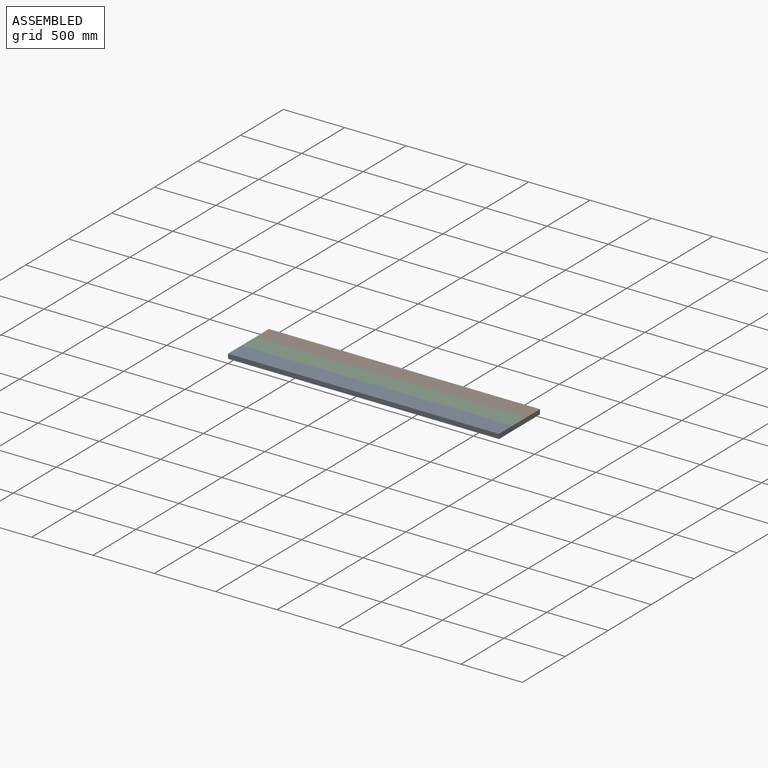
[diagram: assembled view]
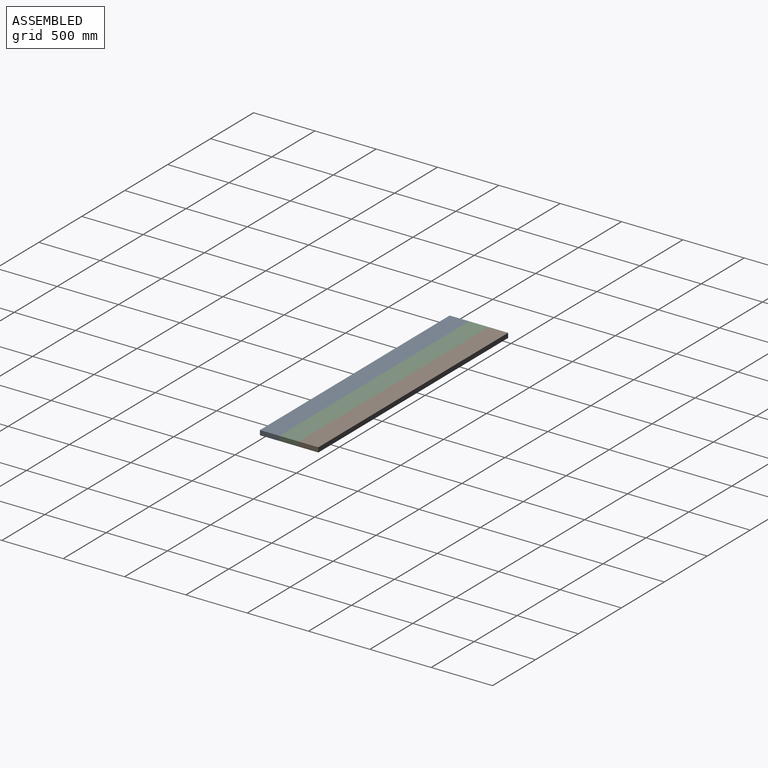
[diagram: assembled view, second angle]
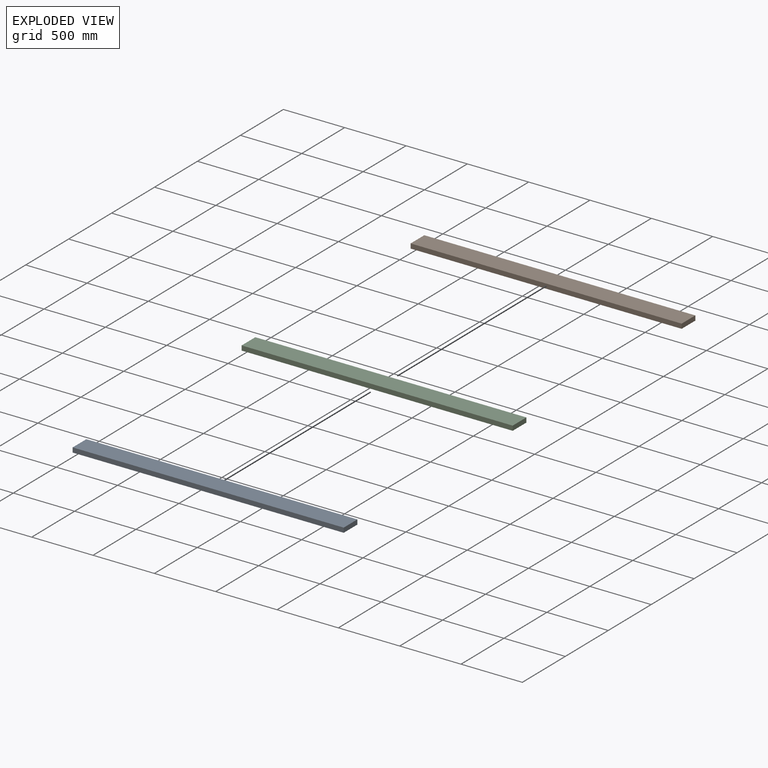
[diagram: exploded view]
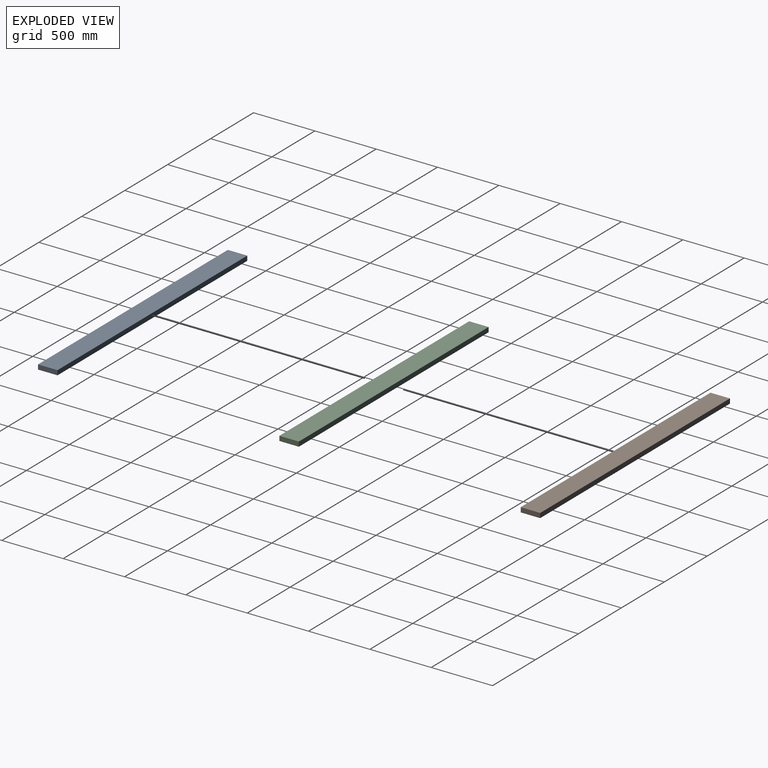
[diagram: exploded view, second angle]
ASSEMBLY  parts=3 mates=2
PART A: 6 faces, bbox 2209.8x38.1x158.8 mm
  f0: plane 2209.8x158.75mm, normal (0,1,0), area 350805.8mm2, adj f1,f3,f4,f5
  f1: plane 2209.8x38.1mm, normal (0,0,1), area 84193.4mm2, adj f0,f2,f4,f5
  f2: plane 2209.8x158.75mm, normal (0,-1,0), area 350805.8mm2, adj f1,f3,f4,f5
  f3: plane 2209.8x38.1mm, normal (0,0,-1), area 84193.4mm2, adj f0,f2,f4,f5
  f4: plane 158.75x38.1mm, normal (1,0,0), area 6048.4mm2, adj f0,f1,f2,f3
  f5: plane 158.75x38.1mm, normal (-1,0,0), area 6048.4mm2, adj f0,f1,f2,f3
PART B: same geometry as A
PART C: same geometry as A
PLACE A rot(axis=(-1,0,0),90deg) t=(1104.9,79.38,19.05)mm
PLACE B rot(axis=(-1,0,0),90deg) t=(1104.9,396.87,19.05)mm
PLACE C rot(axis=(-1,0,0),90deg) t=(1104.9,238.12,19.05)mm
MATE fastened C.f1 <-> B.f3  axis (0,-1,0) through (0,317.5,38.1)mm
MATE fastened C.f3 <-> A.f1  axis (0,1,0) through (0,158.75,38.1)mm
